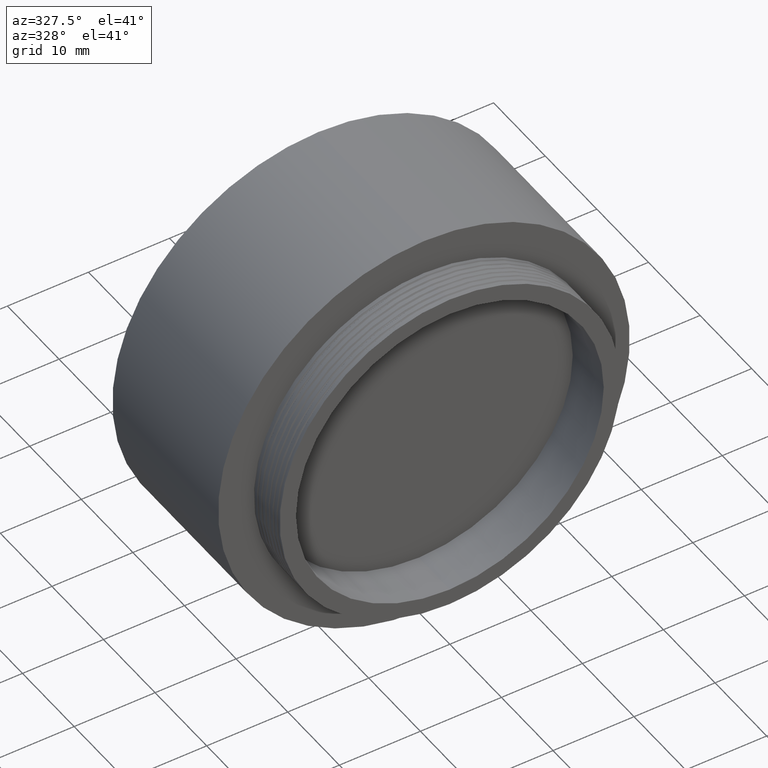
[diagram: clean part render]
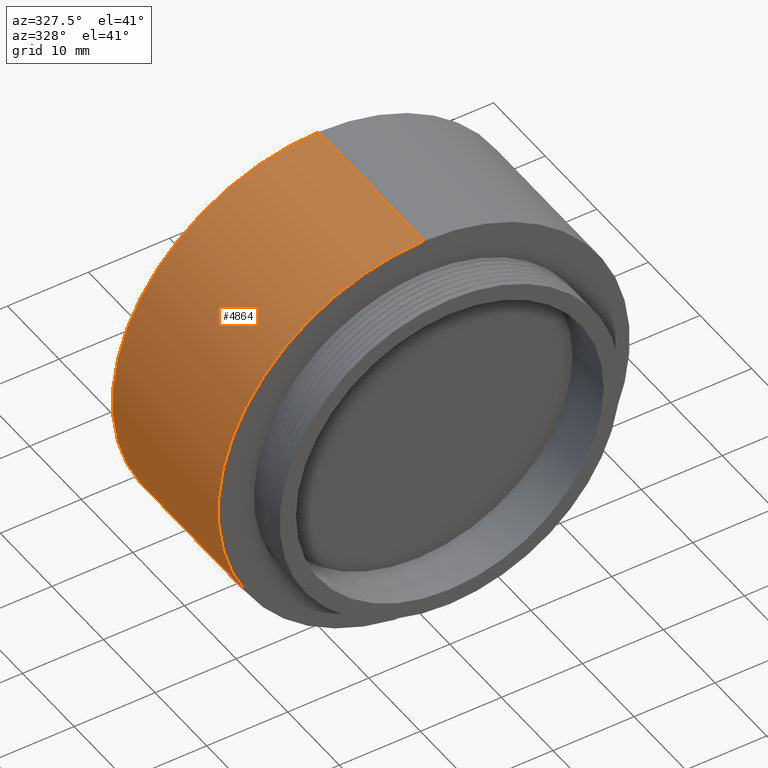
[diagram: same view with one face highlighted and labeled with its STEP entity id]
A machine part, auxiliary view. The second image highlights one B-rep face of the part: STEP entity #4864.
In plain terms, the highlighted cylindrical surface (partial cylindrical patch) has radius 25.4 mm, axis along (-0, -1, -0).
Its self-contained STEP definition (entity closure, byte-faithful):
#115 = ORIENTED_EDGE ( 'NONE', *, *, #418, .T. ) ;
#152 = ORIENTED_EDGE ( 'NONE', *, *, #2280, .F. ) ;
#246 = DIRECTION ( 'NONE',  ( -0.000000000000000000, -1.000000000000000000, -0.000000000000000000 ) ) ;
#378 = AXIS2_PLACEMENT_3D ( 'NONE', #1242, #246, #5375 ) ;
#418 = EDGE_CURVE ( 'NONE', #6165, #3578, #4932, .T. ) ;
#494 = VECTOR ( 'NONE', #2698, 1000.000000000000000 ) ;
#502 = EDGE_CURVE ( 'NONE', #754, #3578, #3503, .T. ) ;
#730 = CARTESIAN_POINT ( 'NONE',  ( 0.000000000000000000, 0.000000000000000000, 0.000000000000000000 ) ) ;
#754 = VERTEX_POINT ( 'NONE', #6451 ) ;
#846 = DIRECTION ( 'NONE',  ( -0.000000000000000000, -1.000000000000000000, -0.000000000000000000 ) ) ;
#932 = FACE_OUTER_BOUND ( 'NONE', #2220, .T. ) ;
#1156 = CARTESIAN_POINT ( 'NONE',  ( 3.110602869834276865E-15, 0.000000000000000000, 25.39999999999999858 ) ) ;
#1242 = CARTESIAN_POINT ( 'NONE',  ( 0.000000000000000000, 5.000000000000000888, 0.000000000000000000 ) ) ;
#1582 = ORIENTED_EDGE ( 'NONE', *, *, #4077, .T. ) ;
#1741 = DIRECTION ( 'NONE',  ( -0.000000000000000000, -1.000000000000000000, -0.000000000000000000 ) ) ;
#1858 = DIRECTION ( 'NONE',  ( 0.000000000000000000, 0.000000000000000000, -1.000000000000000000 ) ) ;
#2000 = CIRCLE ( 'NONE', #2320, 25.39999999999999858 ) ;
#2220 = EDGE_LOOP ( 'NONE', ( #152, #1582, #115, #3664 ) ) ;
#2229 = LINE ( 'NONE', #1156, #494 ) ;
#2280 = EDGE_CURVE ( 'NONE', #3749, #754, #2229, .T. ) ;
#2320 = AXIS2_PLACEMENT_3D ( 'NONE', #2359, #846, #1858 ) ;
#2359 = CARTESIAN_POINT ( 'NONE',  ( 0.000000000000000000, 25.50000000000000000, 0.000000000000000000 ) ) ;
#2698 = DIRECTION ( 'NONE',  ( -0.000000000000000000, -1.000000000000000000, -0.000000000000000000 ) ) ;
#3266 = DIRECTION ( 'NONE',  ( -0.000000000000000000, -1.000000000000000000, -0.000000000000000000 ) ) ;
#3290 = CARTESIAN_POINT ( 'NONE',  ( 0.000000000000000000, 0.000000000000000000, -25.39999999999999858 ) ) ;
#3503 = CIRCLE ( 'NONE', #378, 25.39999999999999858 ) ;
#3578 = VERTEX_POINT ( 'NONE', #5534 ) ;
#3664 = ORIENTED_EDGE ( 'NONE', *, *, #502, .F. ) ;
#3749 = VERTEX_POINT ( 'NONE', #6013 ) ;
#4077 = EDGE_CURVE ( 'NONE', #3749, #6165, #2000, .T. ) ;
#4142 = AXIS2_PLACEMENT_3D ( 'NONE', #730, #3266, #4844 ) ;
#4660 = CARTESIAN_POINT ( 'NONE',  ( 0.000000000000000000, 25.50000000000000000, -25.39999999999999858 ) ) ;
#4844 = DIRECTION ( 'NONE',  ( 0.000000000000000000, 0.000000000000000000, -1.000000000000000000 ) ) ;
#4864 = ADVANCED_FACE ( 'NONE', ( #932 ), #5348, .T. ) ;
#4932 = LINE ( 'NONE', #3290, #6087 ) ;
#5348 = CYLINDRICAL_SURFACE ( 'NONE', #4142, 25.39999999999999858 ) ;
#5375 = DIRECTION ( 'NONE',  ( 0.000000000000000000, 0.000000000000000000, -1.000000000000000000 ) ) ;
#5534 = CARTESIAN_POINT ( 'NONE',  ( 0.000000000000000000, 5.000000000000000888, -25.39999999999999858 ) ) ;
#6013 = CARTESIAN_POINT ( 'NONE',  ( 3.110602869834276865E-15, 25.50000000000000000, 25.39999999999999858 ) ) ;
#6087 = VECTOR ( 'NONE', #1741, 1000.000000000000000 ) ;
#6165 = VERTEX_POINT ( 'NONE', #4660 ) ;
#6451 = CARTESIAN_POINT ( 'NONE',  ( 3.110602869834276865E-15, 5.000000000000000888, 25.39999999999999858 ) ) ;